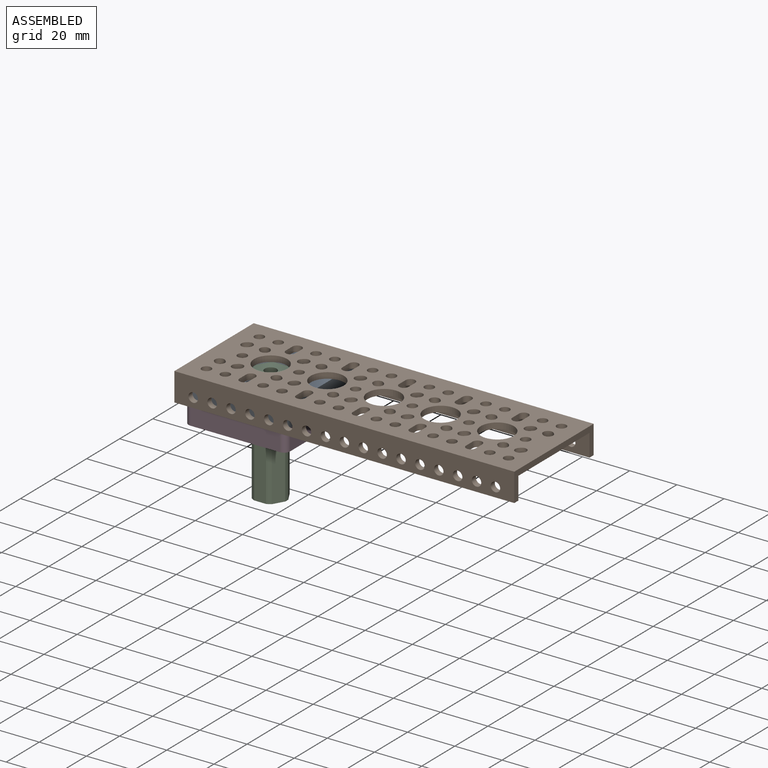
[diagram: assembled view]
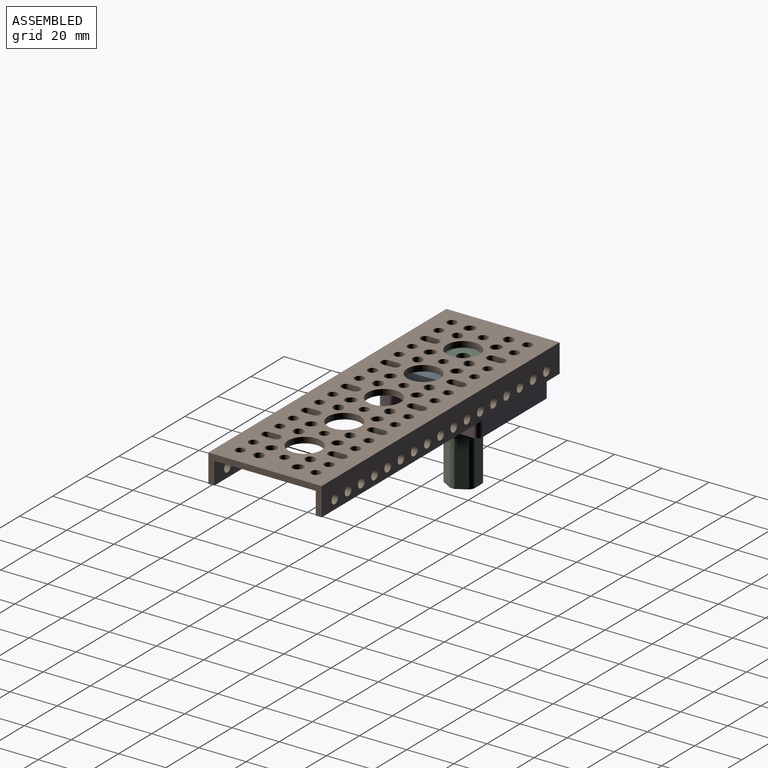
[diagram: assembled view, second angle]
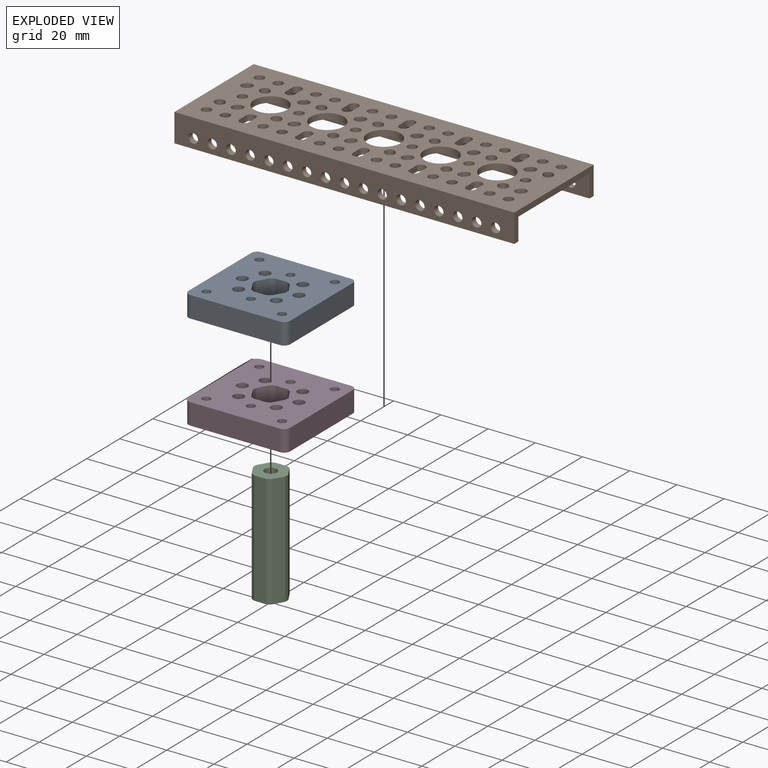
[diagram: exploded view]
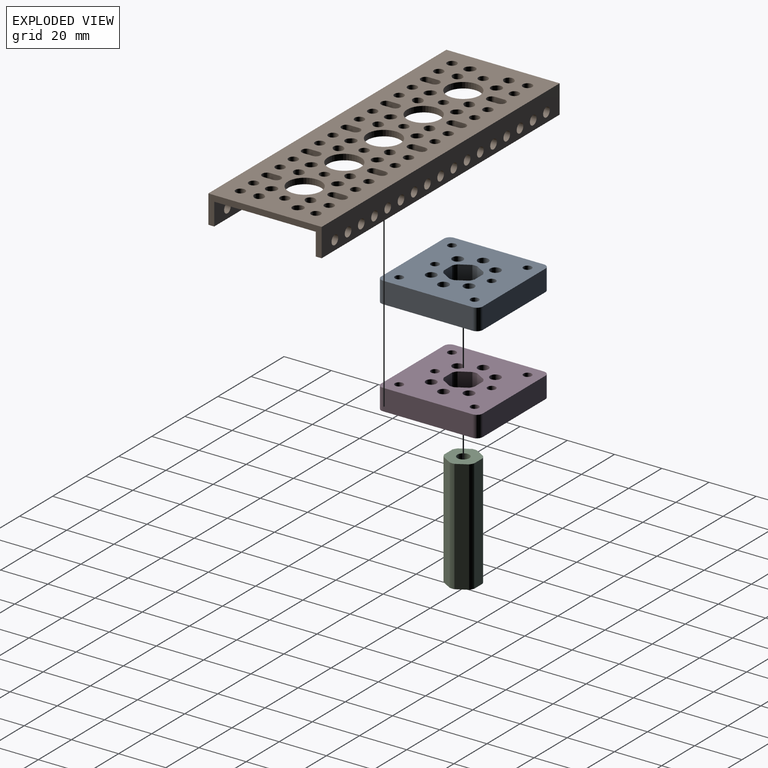
[diagram: exploded view, second angle]
ASSEMBLY  parts=4 mates=3
PART A: 34 faces, bbox 43x43x9 mm
  f0: plane 37.92x9mm, normal (0,1,0), area 341.3mm2, adj f28,f29,f30,f33
  f1: plane 37.92x9mm, normal (-1,0,0), area 341.3mm2, adj f28,f29,f30,f31
  f2: plane 37.92x9mm, normal (0,-1,0), area 341.3mm2, adj f28,f29,f31,f32
  f3: cylinder r=7mm len=9mm, axis (0,0,-1), area 18.3mm2, adj f4,f26,f28,f29
  f4: plane 9x4.48mm, normal (-0.87,0.5,0), area 46.5mm2, adj f3,f5,f28,f29
  f5: cylinder r=7mm len=9mm, axis (0,0,-1), area 18.3mm2, adj f4,f6,f28,f29
  f6: plane 9x5.17mm, normal (0,1,0), area 46.5mm2, adj f5,f7,f28,f29
  f7: cylinder r=7mm len=9mm, axis (0,0,-1), area 18.3mm2, adj f6,f8,f28,f29
  f8: plane 9x4.48mm, normal (0.87,0.5,0), area 46.5mm2, adj f7,f9,f28,f29
  f9: cylinder r=7mm len=9mm, axis (0,0,-1), area 18.3mm2, adj f8,f10,f28,f29
  f10: plane 9x4.48mm, normal (0.87,-0.5,0), area 46.5mm2, adj f9,f11,f28,f29
  f11: cylinder r=7mm len=9mm, axis (0,0,-1), area 18.3mm2, adj f10,f12,f28,f29
  f12: plane 9x5.17mm, normal (0,-1,0), area 46.5mm2, adj f11,f13,f28,f29
  f13: cylinder r=7mm len=9mm, axis (0,0,-1), area 18.3mm2, adj f12,f26,f28,f29
  f14: cylinder r=2.25mm len=9mm, axis (0,0,-1), area 127.2mm2, adj f28,f29
  f15: cylinder r=1.75mm len=9mm, axis (0,0,-1), area 99mm2, adj f28,f29
  f16: cylinder r=2.25mm len=9mm, axis (0,0,-1), area 127.2mm2, adj f28,f29
  f17: cylinder r=2.25mm len=9mm, axis (0,0,-1), area 127.2mm2, adj f28,f29
  f18: cylinder r=2.25mm len=9mm, axis (0,0,-1), area 127.2mm2, adj f28,f29
  f19: cylinder r=1.75mm len=9mm, axis (0,0,-1), area 99mm2, adj f28,f29
  f20: cylinder r=2.25mm len=9mm, axis (0,0,-1), area 127.2mm2, adj f28,f29
  f21: cylinder r=2.25mm len=9mm, axis (0,0,-1), area 127.2mm2, adj f28,f29
  f22: cylinder r=1.75mm len=9mm, axis (0,0,-1), area 99mm2, adj f28,f29
  f23: cylinder r=1.75mm len=9mm, axis (0,0,-1), area 99mm2, adj f28,f29
  f24: cylinder r=1.75mm len=9mm, axis (0,0,-1), area 99mm2, adj f28,f29
  f25: cylinder r=1.75mm len=9mm, axis (0,0,-1), area 99mm2, adj f28,f29
  f26: plane 9x4.48mm, normal (-0.87,-0.5,0), area 46.5mm2, adj f3,f13,f28,f29
  f27: plane 37.92x9mm, normal (1,0,0), area 341.3mm2, adj f28,f29,f32,f33
  f28: plane 43x43mm, normal (0,0,1), area 1546.8mm2, adj f0,f1,f2,f3,f4,f5,f6,f7
  f29: plane 43x43mm, normal (0,0,-1), area 1546.8mm2, adj f0,f1,f2,f3,f4,f5,f6,f7
  f30: cylinder r=2.54mm len=9mm, axis (0,0,1), area 35.9mm2, adj f0,f1,f28,f29
  f31: cylinder r=2.54mm len=9mm, axis (0,0,-1), area 35.9mm2, adj f1,f2,f28,f29
  f32: cylinder r=2.54mm len=9mm, axis (0,0,1), area 35.9mm2, adj f2,f27,f28,f29
  f33: cylinder r=2.54mm len=9mm, axis (0,0,-1), area 35.9mm2, adj f0,f27,f28,f29
PART B: 215 faces, bbox 12x144x48 mm
  f0: cylinder r=2mm len=4mm, axis (0,0,1), area 31.4mm2, adj f103,f214
  f1: cylinder r=2mm len=4mm, axis (0,0,1), area 31.4mm2, adj f103,f214
  f2: cylinder r=2mm len=4mm, axis (0,0,1), area 31.4mm2, adj f103,f214
  f3: cylinder r=2mm len=4mm, axis (0,0,1), area 31.4mm2, adj f103,f214
  f4: cylinder r=2mm len=4mm, axis (0,0,1), area 31.4mm2, adj f103,f214
  f5: cylinder r=2mm len=4mm, axis (0,0,1), area 31.4mm2, adj f103,f214
  f6: cylinder r=2mm len=4mm, axis (0,0,1), area 31.4mm2, adj f103,f214
  f7: cylinder r=2mm len=4mm, axis (0,0,1), area 31.4mm2, adj f103,f214
  f8: cylinder r=2mm len=4mm, axis (0,0,1), area 31.4mm2, adj f103,f214
  f9: cylinder r=2mm len=4mm, axis (0,0,1), area 31.4mm2, adj f103,f214
  f10: cylinder r=2mm len=4mm, axis (0,0,1), area 31.4mm2, adj f103,f214
  f11: cylinder r=2mm len=4mm, axis (0,0,1), area 31.4mm2, adj f103,f214
  f12: cylinder r=2mm len=4mm, axis (0,0,1), area 31.4mm2, adj f103,f214
  f13: cylinder r=2mm len=4mm, axis (0,0,1), area 31.4mm2, adj f103,f214
  f14: cylinder r=2mm len=4mm, axis (0,0,1), area 31.4mm2, adj f103,f214
  f15: cylinder r=2mm len=4mm, axis (0,0,1), area 31.4mm2, adj f103,f214
  f16: cylinder r=2mm len=4mm, axis (0,0,1), area 31.4mm2, adj f125,f211
  f17: cylinder r=2mm len=4mm, axis (0,0,1), area 31.4mm2, adj f125,f211
  f18: cylinder r=2mm len=4mm, axis (0,0,1), area 31.4mm2, adj f125,f211
  f19: cylinder r=2mm len=4mm, axis (0,0,1), area 31.4mm2, adj f125,f211
  f20: cylinder r=2mm len=4mm, axis (0,0,1), area 31.4mm2, adj f125,f211
  f21: cylinder r=2mm len=4mm, axis (0,0,1), area 31.4mm2, adj f125,f211
  f22: cylinder r=2mm len=4mm, axis (0,0,1), area 31.4mm2, adj f125,f211
  f23: cylinder r=2mm len=4mm, axis (0,0,1), area 31.4mm2, adj f125,f211
  f24: cylinder r=2mm len=4mm, axis (0,0,1), area 31.4mm2, adj f125,f211
  f25: cylinder r=2mm len=4mm, axis (0,0,1), area 31.4mm2, adj f125,f211
  f26: cylinder r=2mm len=4mm, axis (0,0,1), area 31.4mm2, adj f125,f211
  f27: cylinder r=2mm len=4mm, axis (0,0,1), area 31.4mm2, adj f125,f211
  f28: cylinder r=2mm len=4mm, axis (0,0,1), area 31.4mm2, adj f125,f211
  f29: cylinder r=2mm len=4mm, axis (0,0,1), area 31.4mm2, adj f125,f211
  f30: cylinder r=2mm len=4mm, axis (0,0,1), area 31.4mm2, adj f125,f211
  f31: cylinder r=2mm len=4mm, axis (0,0,1), area 31.4mm2, adj f125,f211
  f32: cylinder r=2mm len=4mm, axis (0,0,1), area 31.4mm2, adj f125,f211
  f33: cylinder r=2mm len=4mm, axis (0,0,1), area 31.4mm2, adj f103,f214
  f34: cylinder r=2mm len=3.41mm, axis (-1,0,0), area 15.7mm2, adj f123,f124,f209,f210
  f35: cylinder r=2mm len=3.41mm, axis (-1,0,0), area 15.7mm2, adj f123,f124,f201,f202
  f36: cylinder r=2mm len=3.41mm, axis (-1,0,0), area 15.7mm2, adj f123,f124,f199,f200
  f37: cylinder r=2mm len=3.41mm, axis (-1,0,0), area 15.7mm2, adj f123,f124,f191,f192
  f38: cylinder r=2mm len=3.41mm, axis (-1,0,0), area 15.7mm2, adj f123,f124,f189,f190
  f39: cylinder r=2mm len=3.41mm, axis (-1,0,0), area 15.7mm2, adj f123,f124,f181,f182
  f40: cylinder r=2mm len=3.41mm, axis (-1,0,0), area 15.7mm2, adj f123,f124,f179,f180
  f41: cylinder r=2mm len=3.41mm, axis (-1,0,0), area 15.7mm2, adj f123,f124,f171,f172
  f42: cylinder r=2mm len=3.41mm, axis (-1,0,0), area 15.7mm2, adj f123,f124,f169,f170
  f43: cylinder r=2mm len=3.41mm, axis (-1,0,0), area 15.7mm2, adj f123,f124,f161,f162
  f44: cylinder r=2mm len=3.41mm, axis (-1,0,0), area 15.7mm2, adj f123,f124,f159,f160
  f45: cylinder r=2mm len=3.41mm, axis (-1,0,0), area 15.7mm2, adj f123,f124,f151,f152
  f46: cylinder r=2mm len=4mm, axis (-1,0,0), area 15.7mm2, adj f123,f124,f149,f150
  f47: cylinder r=2mm len=4mm, axis (-1,0,0), area 15.7mm2, adj f123,f124,f144,f145
  f48: cylinder r=2mm len=4mm, axis (-1,0,0), area 15.7mm2, adj f123,f124,f139,f140
  f49: cylinder r=2mm len=4mm, axis (-1,0,0), area 15.7mm2, adj f123,f124,f134,f135
  f50: cylinder r=2mm len=4mm, axis (-1,0,0), area 15.7mm2, adj f123,f124,f129,f130
  f51: cylinder r=2mm len=4mm, axis (-1,0,0), area 31.4mm2, adj f123,f124
  f52: cylinder r=2mm len=4mm, axis (-1,0,0), area 31.4mm2, adj f123,f124
  f53: cylinder r=2mm len=4mm, axis (-1,0,0), area 31.4mm2, adj f123,f124
  f54: cylinder r=2mm len=4mm, axis (-1,0,0), area 31.4mm2, adj f123,f124
  f55: cylinder r=2mm len=4mm, axis (-1,0,0), area 31.4mm2, adj f123,f124
  f56: cylinder r=2mm len=4mm, axis (-1,0,0), area 31.4mm2, adj f123,f124
  f57: cylinder r=2mm len=4mm, axis (-1,0,0), area 31.4mm2, adj f123,f124
  f58: cylinder r=2mm len=4mm, axis (-1,0,0), area 31.4mm2, adj f123,f124
  f59: cylinder r=2mm len=4mm, axis (-1,0,0), area 31.4mm2, adj f123,f124
  f60: cylinder r=2mm len=4mm, axis (-1,0,0), area 31.4mm2, adj f123,f124
  f61: cylinder r=2mm len=4mm, axis (-1,0,0), area 31.4mm2, adj f123,f124
  f62: cylinder r=2mm len=4mm, axis (-1,0,0), area 31.4mm2, adj f123,f124
  f63: cylinder r=2mm len=4mm, axis (-1,0,0), area 31.4mm2, adj f123,f124
  f64: cylinder r=2mm len=4mm, axis (-1,0,0), area 31.4mm2, adj f123,f124
  f65: cylinder r=2mm len=4mm, axis (-1,0,0), area 31.4mm2, adj f123,f124
  f66: cylinder r=2mm len=4mm, axis (-1,0,0), area 31.4mm2, adj f123,f124
  f67: cylinder r=2mm len=4mm, axis (-1,0,0), area 31.4mm2, adj f123,f124
  f68: cylinder r=2mm len=4mm, axis (-1,0,0), area 31.4mm2, adj f123,f124
  f69: cylinder r=2mm len=4mm, axis (-1,0,0), area 31.4mm2, adj f123,f124
  f70: cylinder r=2mm len=4mm, axis (-1,0,0), area 31.4mm2, adj f123,f124
  f71: cylinder r=2mm len=4mm, axis (-1,0,0), area 31.4mm2, adj f123,f124
  f72: cylinder r=2mm len=4mm, axis (-1,0,0), area 31.4mm2, adj f123,f124
  f73: cylinder r=2mm len=4mm, axis (-1,0,0), area 31.4mm2, adj f123,f124
  f74: cylinder r=2mm len=4mm, axis (-1,0,0), area 31.4mm2, adj f123,f124
  f75: cylinder r=2mm len=4mm, axis (-1,0,0), area 31.4mm2, adj f123,f124
  f76: cylinder r=2mm len=4mm, axis (-1,0,0), area 31.4mm2, adj f123,f124
  f77: cylinder r=2mm len=4mm, axis (-1,0,0), area 31.4mm2, adj f123,f124
  f78: cylinder r=2mm len=4mm, axis (-1,0,0), area 31.4mm2, adj f123,f124
  f79: cylinder r=2mm len=4mm, axis (-1,0,0), area 31.4mm2, adj f123,f124
  f80: cylinder r=2mm len=4mm, axis (-1,0,0), area 31.4mm2, adj f123,f124
  f81: cylinder r=7mm len=14mm, axis (-1,0,0), area 110mm2, adj f123,f124
  f82: cylinder r=7mm len=14mm, axis (-1,0,0), area 110mm2, adj f123,f124
  f83: cylinder r=7mm len=14mm, axis (-1,0,0), area 110mm2, adj f123,f124
  f84: cylinder r=7mm len=14mm, axis (-1,0,0), area 110mm2, adj f123,f124
  f85: cylinder r=7mm len=14mm, axis (-1,0,0), area 110mm2, adj f123,f124
  f86: cylinder r=2mm len=4mm, axis (-1,0,0), area 15.7mm2, adj f123,f124,f127,f128
  f87: cylinder r=2mm len=4mm, axis (-1,0,0), area 15.7mm2, adj f123,f124,f132,f133
  f88: cylinder r=2mm len=4mm, axis (-1,0,0), area 15.7mm2, adj f123,f124,f137,f138
  f89: cylinder r=2mm len=4mm, axis (-1,0,0), area 15.7mm2, adj f123,f124,f142,f143
  f90: cylinder r=2mm len=4mm, axis (-1,0,0), area 15.7mm2, adj f123,f124,f147,f148
  f91: cylinder r=2mm len=3.41mm, axis (-1,0,0), area 15.7mm2, adj f123,f124,f154,f155
  f92: cylinder r=2mm len=3.41mm, axis (-1,0,0), area 15.7mm2, adj f123,f124,f157,f158
  f93: cylinder r=2mm len=3.41mm, axis (-1,0,0), area 15.7mm2, adj f123,f124,f164,f165
  f94: cylinder r=2mm len=3.41mm, axis (-1,0,0), area 15.7mm2, adj f123,f124,f167,f168
  f95: cylinder r=2mm len=3.41mm, axis (-1,0,0), area 15.7mm2, adj f123,f124,f174,f175
  f96: cylinder r=2mm len=3.41mm, axis (-1,0,0), area 15.7mm2, adj f123,f124,f177,f178
  f97: cylinder r=2mm len=3.41mm, axis (-1,0,0), area 15.7mm2, adj f123,f124,f184,f185
  f98: cylinder r=2mm len=3.41mm, axis (-1,0,0), area 15.7mm2, adj f123,f124,f187,f188
  f99: cylinder r=2mm len=3.41mm, axis (-1,0,0), area 15.7mm2, adj f123,f124,f194,f195
  f100: cylinder r=2mm len=3.41mm, axis (-1,0,0), area 15.7mm2, adj f123,f124,f197,f198
  f101: cylinder r=2mm len=3.41mm, axis (-1,0,0), area 15.7mm2, adj f123,f124,f204,f205
  f102: cylinder r=2mm len=3.41mm, axis (-1,0,0), area 15.7mm2, adj f123,f124,f207,f208
  f103: plane 144x12mm, normal (0,0,1), area 1514.4mm2, adj f0,f1,f2,f3,f4,f5,f6,f7
  f104: plane 48x12mm, normal (0,1,0), area 167.5mm2, adj f103,f123,f124,f125,f211,f212,f213,f214
  f105: plane 48x12mm, normal (0,-1,0), area 167.5mm2, adj f103,f123,f124,f125,f211,f212,f213,f214
  f106: cylinder r=2mm len=3.41mm, axis (-1,0,0), area 15.7mm2, adj f123,f124,f209,f210
  f107: cylinder r=2mm len=3.41mm, axis (-1,0,0), area 15.7mm2, adj f123,f124,f201,f202
  f108: cylinder r=2mm len=3.41mm, axis (-1,0,0), area 15.7mm2, adj f123,f124,f199,f200
  f109: cylinder r=2mm len=3.41mm, axis (-1,0,0), area 15.7mm2, adj f123,f124,f191,f192
  f110: cylinder r=2mm len=3.41mm, axis (-1,0,0), area 15.7mm2, adj f123,f124,f189,f190
  f111: cylinder r=2mm len=3.41mm, axis (-1,0,0), area 15.7mm2, adj f123,f124,f181,f182
  f112: cylinder r=2mm len=3.41mm, axis (-1,0,0), area 15.7mm2, adj f123,f124,f179,f180
  f113: cylinder r=2mm len=3.41mm, axis (-1,0,0), area 15.7mm2, adj f123,f124,f171,f172
  f114: cylinder r=2mm len=3.41mm, axis (-1,0,0), area 15.7mm2, adj f123,f124,f169,f170
  f115: cylinder r=2mm len=3.41mm, axis (-1,0,0), area 15.7mm2, adj f123,f124,f161,f162
  f116: cylinder r=2mm len=3.41mm, axis (-1,0,0), area 15.7mm2, adj f123,f124,f159,f160
  f117: cylinder r=2mm len=3.41mm, axis (-1,0,0), area 15.7mm2, adj f123,f124,f151,f152
  f118: cylinder r=2mm len=4mm, axis (-1,0,0), area 15.7mm2, adj f123,f124,f149,f150
  f119: cylinder r=2mm len=4mm, axis (-1,0,0), area 15.7mm2, adj f123,f124,f144,f145
  f120: cylinder r=2mm len=4mm, axis (-1,0,0), area 15.7mm2, adj f123,f124,f139,f140
  f121: cylinder r=2mm len=4mm, axis (-1,0,0), area 15.7mm2, adj f123,f124,f134,f135
  f122: cylinder r=2mm len=4mm, axis (-1,0,0), area 15.7mm2, adj f123,f124,f129,f130
  f123: plane 144x43mm, normal (1,0,0), area 4392.2mm2, adj f34,f35,f36,f37,f38,f39,f40,f41
  f124: plane 144x48mm, normal (-1,0,0), area 5112.2mm2, adj f34,f35,f36,f37,f38,f39,f40,f41
  f125: plane 144x12mm, normal (0,0,-1), area 1514.4mm2, adj f16,f17,f18,f19,f20,f21,f22,f23
  f126: cylinder r=2mm len=4mm, axis (-1,0,0), area 15.7mm2, adj f123,f124,f127,f128
  f127: plane 4x2.5mm, normal (0,1,0), area 10mm2, adj f86,f123,f124,f126
  f128: plane 4x2.5mm, normal (0,-1,0), area 10mm2, adj f86,f123,f124,f126
  f129: plane 4x2.5mm, normal (0,-1,0), area 10mm2, adj f50,f122,f123,f124
  f130: plane 4x2.5mm, normal (0,1,0), area 10mm2, adj f50,f122,f123,f124
  f131: cylinder r=2mm len=4mm, axis (-1,0,0), area 15.7mm2, adj f123,f124,f132,f133
  f132: plane 4x2.5mm, normal (0,1,0), area 10mm2, adj f87,f123,f124,f131
  f133: plane 4x2.5mm, normal (0,-1,0), area 10mm2, adj f87,f123,f124,f131
  f134: plane 4x2.5mm, normal (0,-1,0), area 10mm2, adj f49,f121,f123,f124
  f135: plane 4x2.5mm, normal (0,1,0), area 10mm2, adj f49,f121,f123,f124
  f136: cylinder r=2mm len=4mm, axis (-1,0,0), area 15.7mm2, adj f123,f124,f137,f138
  f137: plane 4x2.5mm, normal (0,1,0), area 10mm2, adj f88,f123,f124,f136
  f138: plane 4x2.5mm, normal (0,-1,0), area 10mm2, adj f88,f123,f124,f136
  f139: plane 4x2.5mm, normal (0,-1,0), area 10mm2, adj f48,f120,f123,f124
  f140: plane 4x2.5mm, normal (0,1,0), area 10mm2, adj f48,f120,f123,f124
  f141: cylinder r=2mm len=4mm, axis (-1,0,0), area 15.7mm2, adj f123,f124,f142,f143
  f142: plane 4x2.5mm, normal (0,1,0), area 10mm2, adj f89,f123,f124,f141
  f143: plane 4x2.5mm, normal (0,-1,0), area 10mm2, adj f89,f123,f124,f141
  f144: plane 4x2.5mm, normal (0,-1,0), area 10mm2, adj f47,f119,f123,f124
  f145: plane 4x2.5mm, normal (0,1,0), area 10mm2, adj f47,f119,f123,f124
  f146: cylinder r=2mm len=4mm, axis (-1,0,0), area 15.7mm2, adj f123,f124,f147,f148
  f147: plane 4x2.5mm, normal (0,1,0), area 10mm2, adj f90,f123,f124,f146
  f148: plane 4x2.5mm, normal (0,-1,0), area 10mm2, adj f90,f123,f124,f146
  f149: plane 4x2.5mm, normal (0,-1,0), area 10mm2, adj f46,f118,f123,f124
  f150: plane 4x2.5mm, normal (0,1,0), area 10mm2, adj f46,f118,f123,f124
  f151: plane 2.5x0.49mm, normal (0,-0.71,0.71), area 1.7mm2, adj f45,f117,f123,f124
  f152: plane 2.5x0.49mm, normal (0,0.71,-0.71), area 1.7mm2, adj f45,f117,f123,f124
  f153: cylinder r=2mm len=3.41mm, axis (-1,0,0), area 15.7mm2, adj f123,f124,f154,f155
  f154: plane 2.5x0.49mm, normal (0,0.71,0.71), area 1.7mm2, adj f91,f123,f124,f153
  f155: plane 2.5x0.49mm, normal (0,-0.71,-0.71), area 1.7mm2, adj f91,f123,f124,f153
  f156: cylinder r=2mm len=3.41mm, axis (-1,0,0), area 15.7mm2, adj f123,f124,f157,f158
  f157: plane 2.5x0.49mm, normal (0,0.71,-0.71), area 1.7mm2, adj f92,f123,f124,f156
  f158: plane 2.5x0.49mm, normal (0,-0.71,0.71), area 1.7mm2, adj f92,f123,f124,f156
  f159: plane 2.5x0.49mm, normal (0,-0.71,-0.71), area 1.7mm2, adj f44,f116,f123,f124
  f160: plane 2.5x0.49mm, normal (0,0.71,0.71), area 1.7mm2, adj f44,f116,f123,f124
  f161: plane 2.5x0.49mm, normal (0,-0.71,0.71), area 1.7mm2, adj f43,f115,f123,f124
  f162: plane 2.5x0.49mm, normal (0,0.71,-0.71), area 1.7mm2, adj f43,f115,f123,f124
  f163: cylinder r=2mm len=3.41mm, axis (-1,0,0), area 15.7mm2, adj f123,f124,f164,f165
  f164: plane 2.5x0.49mm, normal (0,0.71,0.71), area 1.7mm2, adj f93,f123,f124,f163
  f165: plane 2.5x0.49mm, normal (0,-0.71,-0.71), area 1.7mm2, adj f93,f123,f124,f163
  f166: cylinder r=2mm len=3.41mm, axis (-1,0,0), area 15.7mm2, adj f123,f124,f167,f168
  f167: plane 2.5x0.49mm, normal (0,0.71,-0.71), area 1.7mm2, adj f94,f123,f124,f166
  f168: plane 2.5x0.49mm, normal (0,-0.71,0.71), area 1.7mm2, adj f94,f123,f124,f166
  f169: plane 2.5x0.49mm, normal (0,-0.71,-0.71), area 1.7mm2, adj f42,f114,f123,f124
  f170: plane 2.5x0.49mm, normal (0,0.71,0.71), area 1.7mm2, adj f42,f114,f123,f124
  f171: plane 2.5x0.49mm, normal (0,-0.71,0.71), area 1.7mm2, adj f41,f113,f123,f124
  f172: plane 2.5x0.49mm, normal (0,0.71,-0.71), area 1.7mm2, adj f41,f113,f123,f124
  f173: cylinder r=2mm len=3.41mm, axis (-1,0,0), area 15.7mm2, adj f123,f124,f174,f175
  f174: plane 2.5x0.49mm, normal (0,0.71,0.71), area 1.7mm2, adj f95,f123,f124,f173
  f175: plane 2.5x0.49mm, normal (0,-0.71,-0.71), area 1.7mm2, adj f95,f123,f124,f173
  f176: cylinder r=2mm len=3.41mm, axis (-1,0,0), area 15.7mm2, adj f123,f124,f177,f178
  f177: plane 2.5x0.49mm, normal (0,0.71,-0.71), area 1.7mm2, adj f96,f123,f124,f176
  f178: plane 2.5x0.49mm, normal (0,-0.71,0.71), area 1.7mm2, adj f96,f123,f124,f176
  f179: plane 2.5x0.49mm, normal (0,-0.71,-0.71), area 1.7mm2, adj f40,f112,f123,f124
  f180: plane 2.5x0.49mm, normal (0,0.71,0.71), area 1.7mm2, adj f40,f112,f123,f124
  f181: plane 2.5x0.49mm, normal (0,-0.71,0.71), area 1.7mm2, adj f39,f111,f123,f124
  f182: plane 2.5x0.49mm, normal (0,0.71,-0.71), area 1.7mm2, adj f39,f111,f123,f124
  f183: cylinder r=2mm len=3.41mm, axis (-1,0,0), area 15.7mm2, adj f123,f124,f184,f185
  f184: plane 2.5x0.49mm, normal (0,0.71,0.71), area 1.7mm2, adj f97,f123,f124,f183
  f185: plane 2.5x0.49mm, normal (0,-0.71,-0.71), area 1.7mm2, adj f97,f123,f124,f183
  f186: cylinder r=2mm len=3.41mm, axis (-1,0,0), area 15.7mm2, adj f123,f124,f187,f188
  f187: plane 2.5x0.49mm, normal (0,0.71,-0.71), area 1.7mm2, adj f98,f123,f124,f186
  f188: plane 2.5x0.49mm, normal (0,-0.71,0.71), area 1.7mm2, adj f98,f123,f124,f186
  f189: plane 2.5x0.49mm, normal (0,-0.71,-0.71), area 1.7mm2, adj f38,f110,f123,f124
  f190: plane 2.5x0.49mm, normal (0,0.71,0.71), area 1.7mm2, adj f38,f110,f123,f124
  f191: plane 2.5x0.49mm, normal (0,-0.71,0.71), area 1.7mm2, adj f37,f109,f123,f124
  f192: plane 2.5x0.49mm, normal (0,0.71,-0.71), area 1.7mm2, adj f37,f109,f123,f124
  f193: cylinder r=2mm len=3.41mm, axis (-1,0,0), area 15.7mm2, adj f123,f124,f194,f195
  f194: plane 2.5x0.49mm, normal (0,0.71,0.71), area 1.7mm2, adj f99,f123,f124,f193
  f195: plane 2.5x0.49mm, normal (0,-0.71,-0.71), area 1.7mm2, adj f99,f123,f124,f193
  f196: cylinder r=2mm len=3.41mm, axis (-1,0,0), area 15.7mm2, adj f123,f124,f197,f198
  f197: plane 2.5x0.49mm, normal (0,0.71,-0.71), area 1.7mm2, adj f100,f123,f124,f196
  f198: plane 2.5x0.49mm, normal (0,-0.71,0.71), area 1.7mm2, adj f100,f123,f124,f196
  f199: plane 2.5x0.49mm, normal (0,-0.71,-0.71), area 1.7mm2, adj f36,f108,f123,f124
  f200: plane 2.5x0.49mm, normal (0,0.71,0.71), area 1.7mm2, adj f36,f108,f123,f124
  f201: plane 2.5x0.49mm, normal (0,-0.71,-0.71), area 1.7mm2, adj f35,f107,f123,f124
  f202: plane 2.5x0.49mm, normal (0,0.71,0.71), area 1.7mm2, adj f35,f107,f123,f124
  f203: cylinder r=2mm len=3.41mm, axis (-1,0,0), area 15.7mm2, adj f123,f124,f204,f205
  f204: plane 2.5x0.49mm, normal (0,0.71,-0.71), area 1.7mm2, adj f101,f123,f124,f203
  f205: plane 2.5x0.49mm, normal (0,-0.71,0.71), area 1.7mm2, adj f101,f123,f124,f203
  f206: cylinder r=2mm len=3.41mm, axis (-1,0,0), area 15.7mm2, adj f123,f124,f207,f208
  f207: plane 2.5x0.49mm, normal (0,0.71,0.71), area 1.7mm2, adj f102,f123,f124,f206
  f208: plane 2.5x0.49mm, normal (0,-0.71,-0.71), area 1.7mm2, adj f102,f123,f124,f206
  f209: plane 2.5x0.49mm, normal (0,-0.71,0.71), area 1.7mm2, adj f34,f106,f123,f124
  f210: plane 2.5x0.49mm, normal (0,0.71,-0.71), area 1.7mm2, adj f34,f106,f123,f124
  f211: plane 144x9.5mm, normal (0,0,1), area 1154.4mm2, adj f16,f17,f18,f19,f20,f21,f22,f23
  f212: plane 144x2.5mm, normal (1,0,0), area 360mm2, adj f104,f105,f125,f211
  f213: plane 144x2.5mm, normal (1,0,0), area 360mm2, adj f103,f104,f105,f214
  f214: plane 144x9.5mm, normal (0,0,-1), area 1154.4mm2, adj f0,f1,f2,f3,f4,f5,f6,f7
PART C: 15 faces, bbox 13.7x12.8x48 mm
  f0: cylinder r=2.55mm len=48mm, axis (0,0,1), area 769.1mm2, adj f13,f14
  f1: cylinder r=6.87mm len=48mm, axis (0,0,1), area 93.5mm2, adj f2,f3,f13,f14
  f2: plane 48x4.43mm, normal (0.87,-0.5,0), area 245.7mm2, adj f1,f8,f13,f14
  f3: plane 48x4.43mm, normal (0.87,0.5,0), area 245.7mm2, adj f1,f12,f13,f14
  f4: plane 48x5.12mm, normal (0,1,0), area 245.7mm2, adj f11,f12,f13,f14
  f5: plane 48x4.43mm, normal (-0.87,0.5,0), area 245.7mm2, adj f10,f11,f13,f14
  f6: plane 48x4.43mm, normal (-0.87,-0.5,0), area 245.7mm2, adj f9,f10,f13,f14
  f7: plane 48x5.12mm, normal (0,-1,0), area 245.7mm2, adj f8,f9,f13,f14
  f8: cylinder r=6.87mm len=48mm, axis (0,0,1), area 93.5mm2, adj f2,f7,f13,f14
  f9: cylinder r=6.87mm len=48mm, axis (0,0,1), area 93.5mm2, adj f6,f7,f13,f14
  f10: cylinder r=6.87mm len=48mm, axis (0,0,1), area 93.5mm2, adj f5,f6,f13,f14
  f11: cylinder r=6.87mm len=48mm, axis (0,0,1), area 93.5mm2, adj f4,f5,f13,f14
  f12: cylinder r=6.87mm len=48mm, axis (0,0,1), area 93.5mm2, adj f3,f4,f13,f14
  f13: plane 13.74x12.75mm, normal (0,0,-1), area 117.6mm2, adj f0,f1,f2,f3,f4,f5,f6,f7
  f14: plane 13.74x12.75mm, normal (0,0,1), area 117.6mm2, adj f0,f1,f2,f3,f4,f5,f6,f7
PART D: same geometry as A
PLACE A t=(0,0,-27)mm
PLACE B rot(axis=(0.58,0.58,-0.58),120deg) t=(-24,-21.5,-21.5)mm
PLACE C t=(0,0,409.2)mm
PLACE D t=(0,0,-36)mm
MATE fastened A.f3 <-> C.f0  axis (0,0,1) through (0,0,0)mm
MATE fastened D.f13 <-> A.f5  axis (0,0,1) through (0,0,-9)mm
MATE fastened C.f0 <-> B.f85  axis (0,0,1) through (0,0,0)mm
